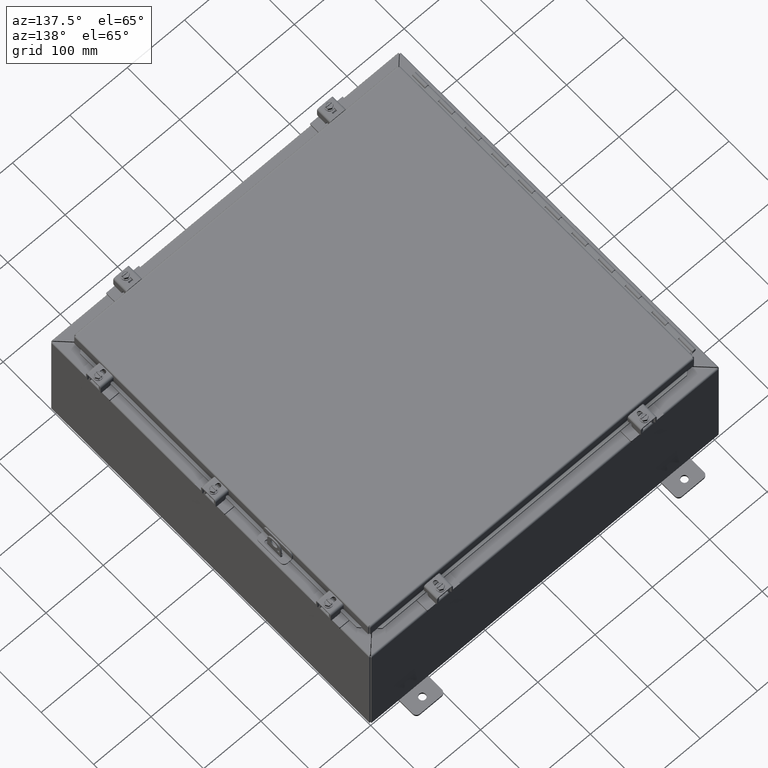
[diagram: clean part render]
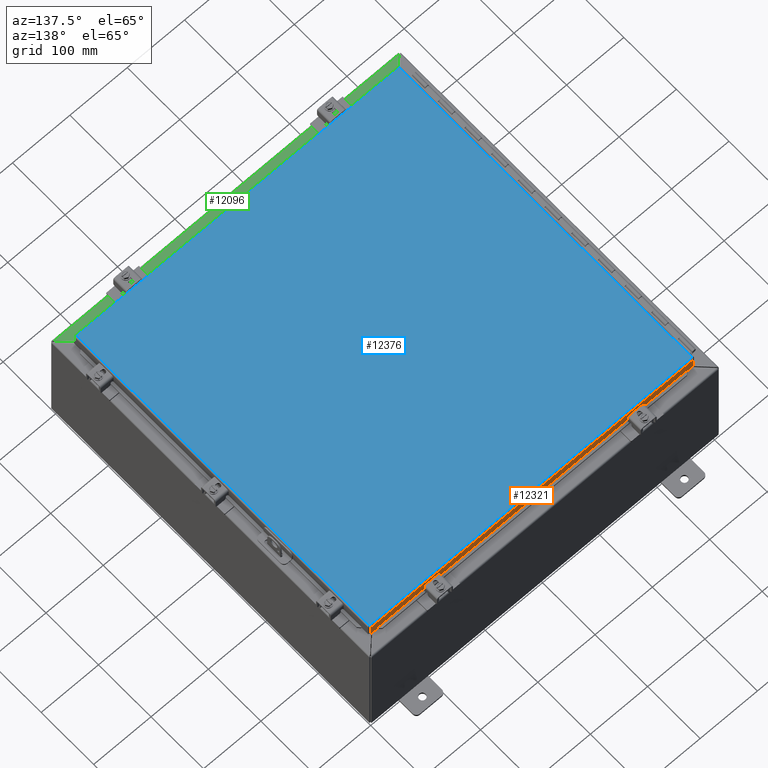
[diagram: same view with three faces highlighted in distinct colors, each labeled with its STEP entity id]
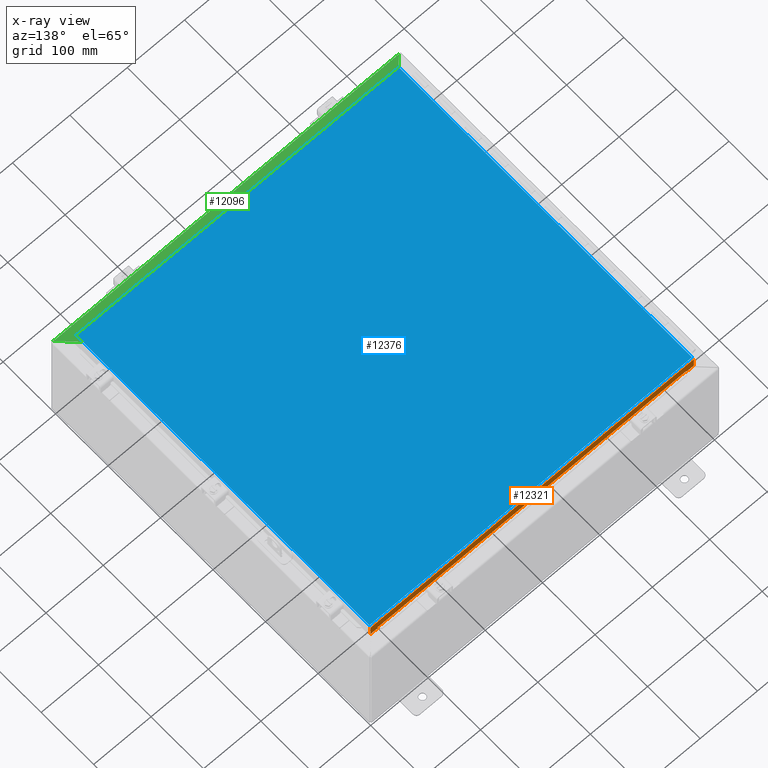
[diagram: x-ray of the same camera — body ghosted, the three highlighted faces saturated]
A machine part, auxiliary view with three faces highlighted in distinct colors.
The next image is the same camera in x-ray (body ghosted, the three faces saturated) — at least one of them is partly hidden behind the body in this view.
Their STEP definitions:

[orange] entity #12321 — the highlighted planar face has unit normal (0, -1, 0).
#1258=PLANE('',#13090);
#1892=LINE('',#20426,#3009);
#1895=LINE('',#20432,#3012);
#1898=LINE('',#20440,#3015);
#1901=LINE('',#20444,#3018);
#1911=LINE('',#20465,#3028);
#1913=LINE('',#20469,#3030);
#1915=LINE('',#20472,#3032);
#1916=LINE('',#20475,#3033);
#1917=LINE('',#20477,#3034);
#1918=LINE('',#20479,#3035);
#1919=LINE('',#20481,#3036);
#1920=LINE('',#20482,#3037);
#3009=VECTOR('',#14881,21.2255857864376);
#3012=VECTOR('',#14886,0.000199999999999981);
#3015=VECTOR('',#14891,0.10545);
#3018=VECTOR('',#14896,0.000199999999999981);
#3028=VECTOR('',#14910,0.10545);
#3030=VECTOR('',#14914,0.000199999999999981);
#3032=VECTOR('',#14918,0.000199999999999981);
#3033=VECTOR('',#14921,0.4998);
#3034=VECTOR('',#14922,0.769750000000002);
#3035=VECTOR('',#14923,22.2255857864376);
#3036=VECTOR('',#14924,0.76975);
#3037=VECTOR('',#14925,0.4998);
#4067=FACE_OUTER_BOUND('',#4777,.T.);
#4777=EDGE_LOOP('',(#9761,#9762,#9763,#9764,#9765,#9766,#9767,#9768,#9769,
#9770,#9771,#9772));
#5967=VERTEX_POINT('',#20415);
#5968=VERTEX_POINT('',#20419);
#5970=VERTEX_POINT('',#20430);
#5973=VERTEX_POINT('',#20437);
#5974=VERTEX_POINT('',#20439);
#5982=VERTEX_POINT('',#20462);
#5983=VERTEX_POINT('',#20464);
#5984=VERTEX_POINT('',#20468);
#5985=VERTEX_POINT('',#20474);
#5986=VERTEX_POINT('',#20476);
#5987=VERTEX_POINT('',#20478);
#5988=VERTEX_POINT('',#20480);
#7352=EDGE_CURVE('',#5967,#5968,#1892,.T.);
#7355=EDGE_CURVE('',#5968,#5970,#1895,.T.);
#7358=EDGE_CURVE('',#5974,#5973,#1898,.T.);
#7361=EDGE_CURVE('',#5970,#5974,#1901,.T.);
#7371=EDGE_CURVE('',#5983,#5982,#1911,.T.);
#7373=EDGE_CURVE('',#5984,#5967,#1913,.T.);
#7375=EDGE_CURVE('',#5982,#5984,#1915,.T.);
#7376=EDGE_CURVE('',#5985,#5973,#1916,.T.);
#7377=EDGE_CURVE('',#5986,#5985,#1917,.T.);
#7378=EDGE_CURVE('',#5986,#5987,#1918,.T.);
#7379=EDGE_CURVE('',#5988,#5987,#1919,.T.);
#7380=EDGE_CURVE('',#5983,#5988,#1920,.T.);
#9761=ORIENTED_EDGE('',*,*,#7358,.T.);
#9762=ORIENTED_EDGE('',*,*,#7376,.F.);
#9763=ORIENTED_EDGE('',*,*,#7377,.F.);
#9764=ORIENTED_EDGE('',*,*,#7378,.T.);
#9765=ORIENTED_EDGE('',*,*,#7379,.F.);
#9766=ORIENTED_EDGE('',*,*,#7380,.F.);
#9767=ORIENTED_EDGE('',*,*,#7371,.T.);
#9768=ORIENTED_EDGE('',*,*,#7375,.T.);
#9769=ORIENTED_EDGE('',*,*,#7373,.T.);
#9770=ORIENTED_EDGE('',*,*,#7352,.T.);
#9771=ORIENTED_EDGE('',*,*,#7355,.T.);
#9772=ORIENTED_EDGE('',*,*,#7361,.T.);
#12321=ADVANCED_FACE('',(#4067),#1258,.F.);
#13090=AXIS2_PLACEMENT_3D('',#20473,#14919,#14920);
#14881=DIRECTION('',(-1.,-1.25587572528948E-16,6.58971764939381E-17));
#14886=DIRECTION('',(0.,5.76987394082548E-15,-1.));
#14891=DIRECTION('',(0.,-5.76987394082548E-15,1.));
#14896=DIRECTION('',(-1.,-1.25587572528947E-16,-7.41807909280797E-31));
#14910=DIRECTION('',(0.,5.76987394082548E-15,-1.));
#14914=DIRECTION('',(0.,-5.76987394082548E-15,1.));
#14918=DIRECTION('',(-1.,-1.25587572528947E-16,-7.41807909280797E-31));
#14919=DIRECTION('center_axis',(-1.25587572528947E-16,1.,5.76987394082548E-15));
#14920=DIRECTION('ref_axis',(1.,0.,1.40998324127395E-16));
#14921=DIRECTION('',(1.,1.25024015441887E-16,-6.31402628642648E-17));
#14922=DIRECTION('',(-5.45127446348593E-15,-5.76987394082548E-15,1.));
#14923=DIRECTION('',(1.,1.25587572528947E-16,3.03774337711938E-33));
#14924=DIRECTION('',(-6.65601388780229E-31,5.39030285815812E-15,-1.));
#14925=DIRECTION('',(1.,1.25024015441887E-16,-6.31402628642648E-17));
#20415=CARTESIAN_POINT('',(10.6127928932188,-11.09375,0.76975));
#20419=CARTESIAN_POINT('',(-10.6127928932188,-11.09375,0.769750000000001));
#20426=CARTESIAN_POINT('',(-5.3279572106828,-11.09375,0.769750000000001));
#20430=CARTESIAN_POINT('',(-10.6127928932188,-11.09375,0.769550000000001));
#20432=CARTESIAN_POINT('',(-10.6127928932188,-11.09375,0.613316981724674));
#20437=CARTESIAN_POINT('',(-10.6129928932188,-11.09375,0.875000000000001));
#20439=CARTESIAN_POINT('',(-10.6129928932188,-11.09375,0.769550000000001));
#20440=CARTESIAN_POINT('',(-10.6129928932188,-11.09375,0.666041981724674));
#20444=CARTESIAN_POINT('',(-5.3280572106828,-11.09375,0.769550000000001));
#20462=CARTESIAN_POINT('',(10.6129928932188,-11.09375,0.76955));
#20464=CARTESIAN_POINT('',(10.6129928932188,-11.09375,0.875));
#20465=CARTESIAN_POINT('',(10.6129928932188,-11.09375,0.613316981724674));
#20468=CARTESIAN_POINT('',(10.6127928932188,-11.09375,0.76955));
#20469=CARTESIAN_POINT('',(10.6127928932188,-11.09375,0.666041981724673));
#20472=CARTESIAN_POINT('',(5.28483568253601,-11.09375,0.76955));
#20473=CARTESIAN_POINT('Origin',(-0.0431215281467918,-11.09375,0.457083963449347));
#20474=CARTESIAN_POINT('',(-11.1127928932188,-11.09375,0.875000000000001));
#20475=CARTESIAN_POINT('',(-11.1875,-11.09375,0.875000000000001));
#20476=CARTESIAN_POINT('',(-11.1127928932188,-11.09375,0.105249999999999));
#20477=CARTESIAN_POINT('',(-11.1127928932188,-11.09375,0.473604481724643));
#20478=CARTESIAN_POINT('',(11.1127928932188,-11.09375,0.10525));
#20479=CARTESIAN_POINT('',(-0.0478732640733955,-11.09375,0.10525));
#20480=CARTESIAN_POINT('',(11.1127928932188,-11.09375,0.875));
#20481=CARTESIAN_POINT('',(11.1127928932188,-11.09375,0.10525));
#20482=CARTESIAN_POINT('',(-11.1875,-11.09375,0.875000000000001));

[blue] entity #12376 — the highlighted planar face has unit normal (0, -0, -1).
#1292=PLANE('',#13132);
#1985=LINE('',#20720,#3102);
#1991=LINE('',#20841,#3108);
#2001=LINE('',#20994,#3118);
#2004=LINE('',#21027,#3121);
#3102=VECTOR('',#15036,22.1645);
#3108=VECTOR('',#15050,22.1645);
#3118=VECTOR('',#15072,21.977);
#3121=VECTOR('',#15081,21.977);
#4122=FACE_OUTER_BOUND('',#4832,.T.);
#4832=EDGE_LOOP('',(#10025,#10026,#10027,#10028));
#6034=VERTEX_POINT('',#20711);
#6035=VERTEX_POINT('',#20719);
#6038=VERTEX_POINT('',#20789);
#6039=VERTEX_POINT('',#20833);
#7454=EDGE_CURVE('',#6035,#6034,#1985,.T.);
#7467=EDGE_CURVE('',#6038,#6039,#1991,.T.);
#7484=EDGE_CURVE('',#6034,#6038,#2001,.T.);
#7488=EDGE_CURVE('',#6039,#6035,#2004,.T.);
#10025=ORIENTED_EDGE('',*,*,#7484,.T.);
#10026=ORIENTED_EDGE('',*,*,#7467,.T.);
#10027=ORIENTED_EDGE('',*,*,#7488,.T.);
#10028=ORIENTED_EDGE('',*,*,#7454,.T.);
#12376=ADVANCED_FACE('',(#4122),#1292,.F.);
#13132=AXIS2_PLACEMENT_3D('',#21107,#15095,#15096);
#15036=DIRECTION('',(-1.,-1.25614896687758E-16,0.));
#15050=DIRECTION('',(1.,0.,0.));
#15072=DIRECTION('',(-1.27288180621204E-16,1.,0.));
#15081=DIRECTION('',(0.,-1.,0.));
#15095=DIRECTION('center_axis',(0.,0.,1.));
#15096=DIRECTION('ref_axis',(1.,0.,0.));
#20711=CARTESIAN_POINT('',(-11.08225,-10.9885,-3.27821759239712E-17));
#20719=CARTESIAN_POINT('',(11.08225,-10.9885,-1.09273919746571E-17));
#20720=CARTESIAN_POINT('',(5.541125,-10.9885,0.));
#20789=CARTESIAN_POINT('',(-11.08225,10.9885,-3.27821759239712E-17));
#20833=CARTESIAN_POINT('',(11.08225,10.9885,-1.09273919746571E-17));
#20841=CARTESIAN_POINT('',(-5.59375,10.9885,0.));
#20994=CARTESIAN_POINT('',(-11.08225,-5.49425,0.));
#21027=CARTESIAN_POINT('',(11.08225,5.49425,0.));
#21107=CARTESIAN_POINT('Origin',(-3.49676543189026E-16,1.3987061727561E-15,
0.));

[green] entity #12096 — the highlighted planar face has unit normal (0, 0, -1).
#1153=PLANE('',#12850);
#1621=LINE('',#17688,#2738);
#1623=LINE('',#17727,#2740);
#1624=LINE('',#17728,#2741);
#1625=LINE('',#17729,#2742);
#2738=VECTOR('',#14144,21.4081740981927);
#2740=VECTOR('',#14148,23.7371740981927);
#2741=VECTOR('',#14149,1.64685169338346);
#2742=VECTOR('',#14150,1.64685169338346);
#3842=FACE_OUTER_BOUND('',#4542,.T.);
#4542=EDGE_LOOP('',(#8774,#8775,#8776,#8777));
#5733=VERTEX_POINT('',#17686);
#5734=VERTEX_POINT('',#17687);
#5741=VERTEX_POINT('',#17725);
#5742=VERTEX_POINT('',#17726);
#6911=EDGE_CURVE('',#5733,#5734,#1621,.T.);
#6919=EDGE_CURVE('',#5741,#5742,#1623,.T.);
#6920=EDGE_CURVE('',#5733,#5742,#1624,.T.);
#6921=EDGE_CURVE('',#5741,#5734,#1625,.T.);
#8774=ORIENTED_EDGE('',*,*,#6919,.T.);
#8775=ORIENTED_EDGE('',*,*,#6920,.F.);
#8776=ORIENTED_EDGE('',*,*,#6911,.T.);
#8777=ORIENTED_EDGE('',*,*,#6921,.F.);
#12096=ADVANCED_FACE('',(#3842),#1153,.F.);
#12850=AXIS2_PLACEMENT_3D('',#17724,#14146,#14147);
#14144=DIRECTION('',(-1.,-1.29397960892803E-16,-8.77761798888672E-18));
#14146=DIRECTION('center_axis',(8.77761798888529E-18,1.09905881028437E-14,
-1.));
#14147=DIRECTION('ref_axis',(-1.16544054222463E-16,1.,9.02389274415329E-15));
#14148=DIRECTION('',(1.,1.15813860476977E-16,8.77761798888656E-18));
#14149=DIRECTION('',(0.707106781186548,-0.707106781186548,-7.65080242564189E-15));
#14150=DIRECTION('',(0.707106781186548,0.707106781186547,7.64974885456532E-15));
#17686=CARTESIAN_POINT('',(10.7040870490966,-10.73025,8.00000000000001));
#17687=CARTESIAN_POINT('',(-10.7040870490961,-10.73025,8.00000000000001));
#17688=CARTESIAN_POINT('',(-5.35204352454805,-10.73025,8.00000000000001));
#17724=CARTESIAN_POINT('Origin',(4.26698934459378E-14,-11.329274321345,
8.00000000000001));
#17725=CARTESIAN_POINT('',(-11.8685870490961,-11.89475,8.));
#17726=CARTESIAN_POINT('',(11.8685870490966,-11.89475,8.));
#17727=CARTESIAN_POINT('',(2.06656256445375E-14,-11.89475,8.));
#17728=CARTESIAN_POINT('',(11.8685870490966,-11.89475,8.));
#17729=CARTESIAN_POINT('',(-11.8685870490961,-11.89475,8.));